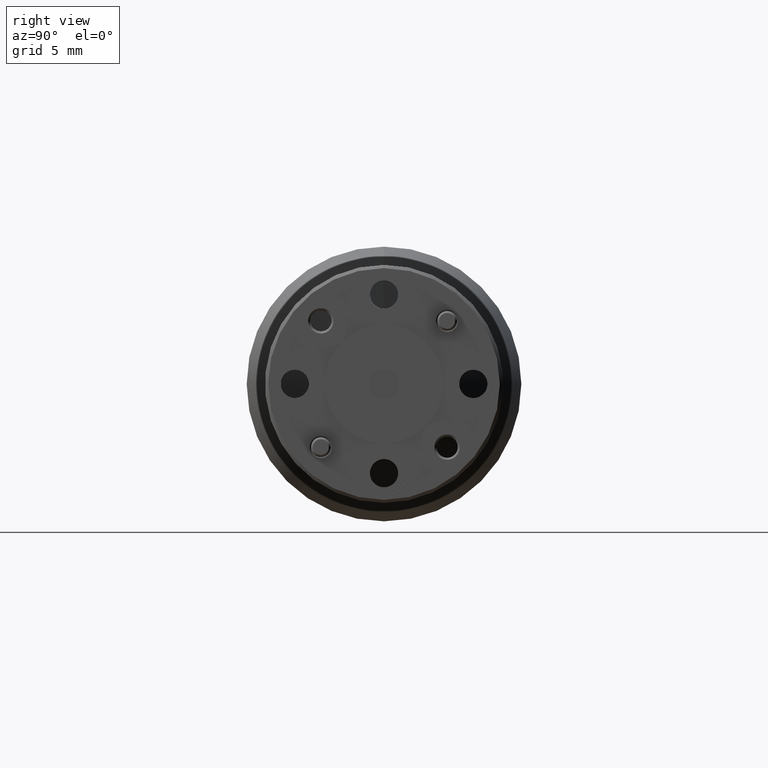
[diagram: clean part render]
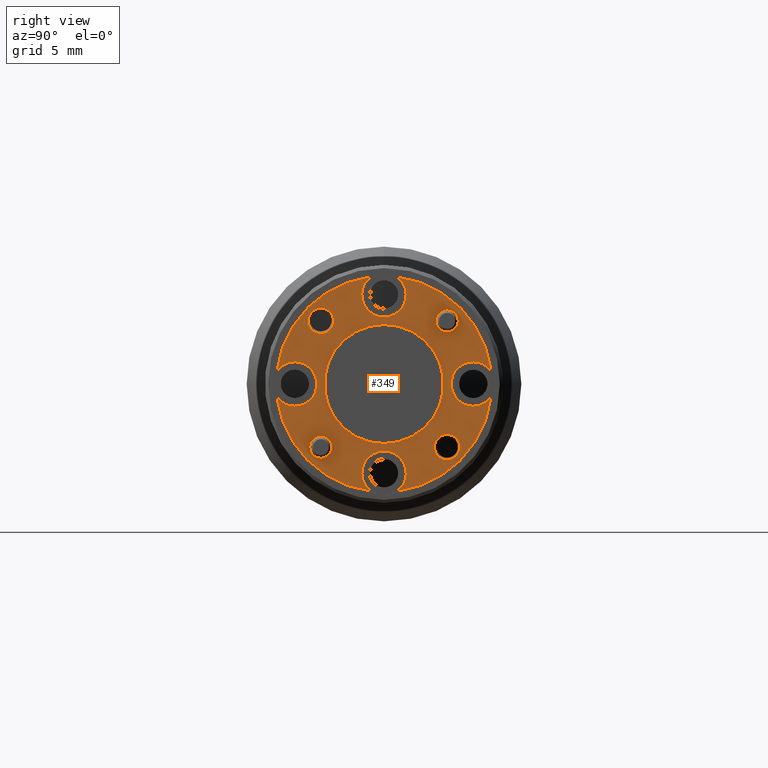
[diagram: same view with one face highlighted and labeled with its STEP entity id]
A machine part, right view. The second image highlights one B-rep face of the part: STEP entity #349.
In plain terms, the highlighted planar face has unit normal (1, 0, 0).
Its self-contained STEP definition (entity closure, byte-faithful):
#24 = CARTESIAN_POINT ( 'NONE',  ( -5.178961933510678683, 1.217303930725912142, 2.581463308989429883 ) ) ;
#31 = EDGE_CURVE ( 'NONE', #814, #1945, #253, .T. ) ;
#40 = ORIENTED_EDGE ( 'NONE', *, *, #589, .T. ) ;
#49 = ORIENTED_EDGE ( 'NONE', *, *, #234, .F. ) ;
#61 = VERTEX_POINT ( 'NONE', #2313 ) ;
#69 = DIRECTION ( 'NONE',  ( 1.000000000000000000, 0.000000000000000000, 0.000000000000000000 ) ) ;
#75 = ORIENTED_EDGE ( 'NONE', *, *, #1982, .F. ) ;
#98 = EDGE_CURVE ( 'NONE', #475, #1851, #1401, .T. ) ;
#129 = DIRECTION ( 'NONE',  ( 0.000000000000000000, 0.000000000000000000, -1.000000000000000000 ) ) ;
#159 = CARTESIAN_POINT ( 'NONE',  ( -5.178961933510678683, 1.217303930725912142, 2.370213308989429724 ) ) ;
#167 = DIRECTION ( 'NONE',  ( 1.000000000000000000, -0.000000000000000000, 6.123233995736766036E-17 ) ) ;
#177 = CIRCLE ( 'NONE', #1500, 0.07000000000000007605 ) ;
#183 = AXIS2_PLACEMENT_3D ( 'NONE', #2336, #677, #900 ) ;
#198 = CARTESIAN_POINT ( 'NONE',  ( -5.178961933510678683, 1.416177712934628463, 2.131339526780712923 ) ) ;
#208 = CIRCLE ( 'NONE', #1740, 0.07000000000000007605 ) ;
#217 = CARTESIAN_POINT ( 'NONE',  ( -5.178961933510678683, 1.554728930725912228, 2.411978957254480971 ) ) ;
#234 = EDGE_CURVE ( 'NONE', #1967, #1840, #639, .T. ) ;
#244 = CARTESIAN_POINT ( 'NONE',  ( -5.178961933510678683, 1.498553930725912364, 2.370213308989429724 ) ) ;
#252 = VERTEX_POINT ( 'NONE', #1164 ) ;
#253 = CIRCLE ( 'NONE', #884, 0.07000000000000007605 ) ;
#272 = AXIS2_PLACEMENT_3D ( 'NONE', #2331, #2203, #1096 ) ;
#300 = ORIENTED_EDGE ( 'NONE', *, *, #1940, .T. ) ;
#332 = DIRECTION ( 'NONE',  ( 1.000000000000000000, 0.000000000000000000, 0.000000000000000000 ) ) ;
#333 = CIRCLE ( 'NONE', #953, 0.03500000000000003803 ) ;
#334 = DIRECTION ( 'NONE',  ( 0.000000000000000000, 0.000000000000000000, -1.000000000000000000 ) ) ;
#346 = FACE_BOUND ( 'NONE', #1925, .T. ) ;
#347 = EDGE_CURVE ( 'NONE', #697, #1555, #442, .T. ) ;
#349 = ADVANCED_FACE ( 'NONE', ( #514, #847, #346, #1606, #1976, #2286 ), #1435, .T. ) ;
#355 = ORIENTED_EDGE ( 'NONE', *, *, #1065, .T. ) ;
#360 = CARTESIAN_POINT ( 'NONE',  ( -5.178961933510678683, 1.018430148517196043, 2.609087091198146524 ) ) ;
#363 = CIRCLE ( 'NONE', #591, 0.3399999999999999134 ) ;
#369 = CIRCLE ( 'NONE', #797, 0.07000000000000007605 ) ;
#375 = DIRECTION ( 'NONE',  ( 1.000000000000000000, -0.000000000000000000, 6.123233995736766036E-17 ) ) ;
#377 = CARTESIAN_POINT ( 'NONE',  ( -5.178961933510678683, 1.498553930725912364, 2.370213308989429724 ) ) ;
#378 = EDGE_CURVE ( 'NONE', #252, #1840, #2084, .T. ) ;
#380 = EDGE_CURVE ( 'NONE', #252, #2099, #948, .T. ) ;
#398 = CARTESIAN_POINT ( 'NONE',  ( -5.178961933510678683, 1.416177712934629795, 2.569087091198145156 ) ) ;
#426 = DIRECTION ( 'NONE',  ( 1.000000000000000000, 0.000000000000000000, 0.000000000000000000 ) ) ;
#437 = CARTESIAN_POINT ( 'NONE',  ( -5.178961933510678683, 1.217303930725912142, 2.370213308989429724 ) ) ;
#442 = CIRCLE ( 'NONE', #1064, 0.03500000000000003803 ) ;
#452 = DIRECTION ( 'NONE',  ( 0.000000000000000000, 0.000000000000000000, -1.000000000000000000 ) ) ;
#460 = CIRCLE ( 'NONE', #1711, 0.03500000000000003803 ) ;
#468 = DIRECTION ( 'NONE',  ( 1.000000000000000000, -0.000000000000000000, 6.123233995736766036E-17 ) ) ;
#475 = VERTEX_POINT ( 'NONE', #198 ) ;
#480 = CARTESIAN_POINT ( 'NONE',  ( -5.178961933510678683, 1.217303930725912142, 2.370213308989429724 ) ) ;
#491 = EDGE_CURVE ( 'NONE', #1851, #475, #2162, .T. ) ;
#502 = EDGE_CURVE ( 'NONE', #1381, #1913, #920, .T. ) ;
#503 = CARTESIAN_POINT ( 'NONE',  ( -5.178961933510678683, 1.217303930725912142, 2.651463308989429724 ) ) ;
#514 = FACE_BOUND ( 'NONE', #1499, .T. ) ;
#557 = EDGE_CURVE ( 'NONE', #2099, #1159, #177, .T. ) ;
#568 = CIRCLE ( 'NONE', #1260, 0.04000000000000011879 ) ;
#589 = EDGE_CURVE ( 'NONE', #1996, #1003, #363, .T. ) ;
#591 = AXIS2_PLACEMENT_3D ( 'NONE', #437, #69, #647 ) ;
#611 = ORIENTED_EDGE ( 'NONE', *, *, #378, .T. ) ;
#627 = ORIENTED_EDGE ( 'NONE', *, *, #1644, .F. ) ;
#639 = CIRCLE ( 'NONE', #1699, 0.07000000000000007605 ) ;
#641 = CIRCLE ( 'NONE', #989, 0.1875000000000001110 ) ;
#645 = EDGE_LOOP ( 'NONE', ( #1995, #40, #1312, #1091, #355, #879, #627, #978, #300, #710, #2340, #611, #49, #75 ) ) ;
#647 = DIRECTION ( 'NONE',  ( 0.000000000000000000, 0.000000000000000000, -1.000000000000000000 ) ) ;
#649 = DIRECTION ( 'NONE',  ( 0.000000000000000000, 0.000000000000000000, -1.000000000000000000 ) ) ;
#653 = EDGE_CURVE ( 'NONE', #1216, #786, #208, .T. ) ;
#654 = AXIS2_PLACEMENT_3D ( 'NONE', #899, #1605, #649 ) ;
#667 = CIRCLE ( 'NONE', #1092, 0.3399999999999999134 ) ;
#677 = DIRECTION ( 'NONE',  ( 1.000000000000000000, 0.000000000000000000, 0.000000000000000000 ) ) ;
#686 = ORIENTED_EDGE ( 'NONE', *, *, #1025, .F. ) ;
#697 = VERTEX_POINT ( 'NONE', #1973 ) ;
#705 = CARTESIAN_POINT ( 'NONE',  ( -5.178961933510678683, 1.217303930725912142, 2.651463308989429724 ) ) ;
#710 = ORIENTED_EDGE ( 'NONE', *, *, #557, .F. ) ;
#712 = CARTESIAN_POINT ( 'NONE',  ( -5.178961933510678683, 0.9360539307259121422, 2.370213308989429724 ) ) ;
#726 = AXIS2_PLACEMENT_3D ( 'NONE', #2038, #375, #1088 ) ;
#729 = CARTESIAN_POINT ( 'NONE',  ( -5.178961933510678683, 1.416177712934628463, 2.171339526780712958 ) ) ;
#730 = CIRCLE ( 'NONE', #2272, 0.07000000000000007605 ) ;
#732 = CARTESIAN_POINT ( 'NONE',  ( -5.178961933510678683, 1.416177712934628463, 2.171339526780712958 ) ) ;
#751 = EDGE_CURVE ( 'NONE', #1224, #1223, #1442, .T. ) ;
#766 = CIRCLE ( 'NONE', #1865, 0.07000000000000007605 ) ;
#774 = ORIENTED_EDGE ( 'NONE', *, *, #98, .F. ) ;
#784 = DIRECTION ( 'NONE',  ( 1.000000000000000000, 0.000000000000000000, 0.000000000000000000 ) ) ;
#786 = VERTEX_POINT ( 'NONE', #2284 ) ;
#797 = AXIS2_PLACEMENT_3D ( 'NONE', #377, #1837, #2212 ) ;
#804 = CARTESIAN_POINT ( 'NONE',  ( -5.178961933510678683, 1.416177712934629795, 2.604087091198145298 ) ) ;
#814 = VERTEX_POINT ( 'NONE', #1616 ) ;
#821 = DIRECTION ( 'NONE',  ( 1.000000000000000000, -0.000000000000000000, 6.123233995736766036E-17 ) ) ;
#824 = ORIENTED_EDGE ( 'NONE', *, *, #751, .F. ) ;
#847 = FACE_BOUND ( 'NONE', #993, .T. ) ;
#873 = CARTESIAN_POINT ( 'NONE',  ( -5.178961933510678683, 0.8798789307259121673, 2.328447660724378476 ) ) ;
#879 = ORIENTED_EDGE ( 'NONE', *, *, #653, .F. ) ;
#884 = AXIS2_PLACEMENT_3D ( 'NONE', #705, #1428, #1585 ) ;
#889 = EDGE_LOOP ( 'NONE', ( #927, #686 ) ) ;
#895 = EDGE_CURVE ( 'NONE', #2097, #1503, #460, .T. ) ;
#897 = DIRECTION ( 'NONE',  ( 1.000000000000000000, 0.000000000000000000, 0.000000000000000000 ) ) ;
#899 = CARTESIAN_POINT ( 'NONE',  ( -5.178961933510678683, 1.217303930725912142, 2.370213308989429724 ) ) ;
#900 = DIRECTION ( 'NONE',  ( 0.000000000000000000, 0.000000000000000000, -1.000000000000000000 ) ) ;
#920 = CIRCLE ( 'NONE', #726, 0.04000000000000011879 ) ;
#925 = DIRECTION ( 'NONE',  ( 0.000000000000000000, 0.000000000000000000, -1.000000000000000000 ) ) ;
#927 = ORIENTED_EDGE ( 'NONE', *, *, #347, .F. ) ;
#929 = DIRECTION ( 'NONE',  ( 0.000000000000000000, 0.000000000000000000, -1.000000000000000000 ) ) ;
#933 = DIRECTION ( 'NONE',  ( 1.000000000000000000, -0.000000000000000000, 6.123233995736766036E-17 ) ) ;
#941 = DIRECTION ( 'NONE',  ( 1.000000000000000000, -0.000000000000000000, 6.123233995736766036E-17 ) ) ;
#948 = CIRCLE ( 'NONE', #183, 0.07000000000000007605 ) ;
#953 = AXIS2_PLACEMENT_3D ( 'NONE', #1480, #167, #2198 ) ;
#978 = ORIENTED_EDGE ( 'NONE', *, *, #1580, .F. ) ;
#989 = AXIS2_PLACEMENT_3D ( 'NONE', #1210, #2334, #129 ) ;
#993 = EDGE_LOOP ( 'NONE', ( #2255, #1015 ) ) ;
#1001 = CIRCLE ( 'NONE', #654, 0.3399999999999999134 ) ;
#1003 = VERTEX_POINT ( 'NONE', #1767 ) ;
#1004 = EDGE_CURVE ( 'NONE', #1945, #1003, #766, .T. ) ;
#1015 = ORIENTED_EDGE ( 'NONE', *, *, #1100, .F. ) ;
#1025 = EDGE_CURVE ( 'NONE', #1555, #697, #1634, .T. ) ;
#1038 = DIRECTION ( 'NONE',  ( 0.000000000000000000, 0.000000000000000000, -1.000000000000000000 ) ) ;
#1047 = AXIS2_PLACEMENT_3D ( 'NONE', #712, #784, #1446 ) ;
#1049 = DIRECTION ( 'NONE',  ( 1.000000000000000000, 0.000000000000000000, 0.000000000000000000 ) ) ;
#1058 = DIRECTION ( 'NONE',  ( 0.000000000000000000, 0.000000000000000000, -1.000000000000000000 ) ) ;
#1064 = AXIS2_PLACEMENT_3D ( 'NONE', #2151, #2119, #334 ) ;
#1065 = EDGE_CURVE ( 'NONE', #814, #786, #1001, .T. ) ;
#1087 = CARTESIAN_POINT ( 'NONE',  ( -5.178961933510678683, 1.175538282460860895, 2.032788308989429638 ) ) ;
#1088 = DIRECTION ( 'NONE',  ( 0.000000000000000000, 0.000000000000000000, -1.000000000000000000 ) ) ;
#1091 = ORIENTED_EDGE ( 'NONE', *, *, #31, .F. ) ;
#1092 = AXIS2_PLACEMENT_3D ( 'NONE', #2173, #2039, #925 ) ;
#1096 = DIRECTION ( 'NONE',  ( 0.000000000000000000, 0.000000000000000000, -1.000000000000000000 ) ) ;
#1100 = EDGE_CURVE ( 'NONE', #1913, #1381, #568, .T. ) ;
#1104 = AXIS2_PLACEMENT_3D ( 'NONE', #1777, #897, #1603 ) ;
#1124 = CARTESIAN_POINT ( 'NONE',  ( -5.178961933510678683, 1.217303930725912142, 2.182713308989429724 ) ) ;
#1137 = CARTESIAN_POINT ( 'NONE',  ( -5.178961933510678683, 1.498553930725912364, 2.300213308989429883 ) ) ;
#1159 = VERTEX_POINT ( 'NONE', #1087 ) ;
#1164 = CARTESIAN_POINT ( 'NONE',  ( -5.178961933510678683, 1.259069578990963612, 2.032788308989429638 ) ) ;
#1171 = CARTESIAN_POINT ( 'NONE',  ( -5.178961933510678683, 1.018430148517196043, 2.529087091198146009 ) ) ;
#1210 = CARTESIAN_POINT ( 'NONE',  ( -5.178961933510678683, 1.217303930725912142, 2.370213308989429724 ) ) ;
#1216 = VERTEX_POINT ( 'NONE', #1637 ) ;
#1223 = VERTEX_POINT ( 'NONE', #1816 ) ;
#1224 = VERTEX_POINT ( 'NONE', #1124 ) ;
#1242 = DIRECTION ( 'NONE',  ( 1.000000000000000000, -0.000000000000000000, 6.123233995736766036E-17 ) ) ;
#1256 = CARTESIAN_POINT ( 'NONE',  ( -5.178961933510678683, 1.416177712934628463, 2.211339526780712994 ) ) ;
#1260 = AXIS2_PLACEMENT_3D ( 'NONE', #1594, #468, #1038 ) ;
#1264 = CARTESIAN_POINT ( 'NONE',  ( -5.178961933510678683, 1.498553930725912364, 2.370213308989429724 ) ) ;
#1312 = ORIENTED_EDGE ( 'NONE', *, *, #1004, .F. ) ;
#1345 = CARTESIAN_POINT ( 'NONE',  ( -5.178961933510678683, 1.217303930725912142, 2.088963308989429724 ) ) ;
#1381 = VERTEX_POINT ( 'NONE', #1171 ) ;
#1401 = CIRCLE ( 'NONE', #1979, 0.04000000000000011879 ) ;
#1415 = ORIENTED_EDGE ( 'NONE', *, *, #491, .F. ) ;
#1421 = CIRCLE ( 'NONE', #272, 0.07000000000000007605 ) ;
#1428 = DIRECTION ( 'NONE',  ( 1.000000000000000000, 0.000000000000000000, 0.000000000000000000 ) ) ;
#1435 = PLANE ( 'NONE',  #2229 ) ;
#1441 = AXIS2_PLACEMENT_3D ( 'NONE', #729, #941, #2200 ) ;
#1442 = CIRCLE ( 'NONE', #1104, 0.1875000000000001110 ) ;
#1446 = DIRECTION ( 'NONE',  ( 0.000000000000000000, 0.000000000000000000, -1.000000000000000000 ) ) ;
#1480 = CARTESIAN_POINT ( 'NONE',  ( -5.178961933510678683, 1.416177712934629795, 2.569087091198145156 ) ) ;
#1499 = EDGE_LOOP ( 'NONE', ( #774, #1415 ) ) ;
#1500 = AXIS2_PLACEMENT_3D ( 'NONE', #1345, #1518, #452 ) ;
#1503 = VERTEX_POINT ( 'NONE', #1972 ) ;
#1518 = DIRECTION ( 'NONE',  ( 1.000000000000000000, 0.000000000000000000, 0.000000000000000000 ) ) ;
#1529 = EDGE_LOOP ( 'NONE', ( #824, #1693 ) ) ;
#1555 = VERTEX_POINT ( 'NONE', #1804 ) ;
#1558 = DIRECTION ( 'NONE',  ( 0.000000000000000000, 0.000000000000000000, -1.000000000000000000 ) ) ;
#1559 = DIRECTION ( 'NONE',  ( 0.000000000000000000, 0.000000000000000000, -1.000000000000000000 ) ) ;
#1580 = EDGE_CURVE ( 'NONE', #1746, #61, #1677, .T. ) ;
#1585 = DIRECTION ( 'NONE',  ( 0.000000000000000000, 0.000000000000000000, -1.000000000000000000 ) ) ;
#1594 = CARTESIAN_POINT ( 'NONE',  ( -5.178961933510678683, 1.018430148517196043, 2.569087091198146489 ) ) ;
#1603 = DIRECTION ( 'NONE',  ( 0.000000000000000000, 0.000000000000000000, -1.000000000000000000 ) ) ;
#1605 = DIRECTION ( 'NONE',  ( 1.000000000000000000, 0.000000000000000000, 0.000000000000000000 ) ) ;
#1606 = FACE_BOUND ( 'NONE', #889, .T. ) ;
#1616 = CARTESIAN_POINT ( 'NONE',  ( -5.178961933510678683, 1.175538282460861117, 2.707638308989429810 ) ) ;
#1621 = CARTESIAN_POINT ( 'NONE',  ( -5.178961933510678683, 1.554728930725912228, 2.328447660724378476 ) ) ;
#1634 = CIRCLE ( 'NONE', #2282, 0.03500000000000003803 ) ;
#1637 = CARTESIAN_POINT ( 'NONE',  ( -5.178961933510678683, 0.9360539307259121422, 2.440213308989430008 ) ) ;
#1644 = EDGE_CURVE ( 'NONE', #61, #1216, #1421, .T. ) ;
#1677 = CIRCLE ( 'NONE', #1047, 0.07000000000000007605 ) ;
#1693 = ORIENTED_EDGE ( 'NONE', *, *, #2150, .F. ) ;
#1699 = AXIS2_PLACEMENT_3D ( 'NONE', #244, #2094, #2065 ) ;
#1711 = AXIS2_PLACEMENT_3D ( 'NONE', #398, #821, #2040 ) ;
#1740 = AXIS2_PLACEMENT_3D ( 'NONE', #1908, #426, #1883 ) ;
#1746 = VERTEX_POINT ( 'NONE', #873 ) ;
#1767 = CARTESIAN_POINT ( 'NONE',  ( -5.178961933510678683, 1.259069578990963612, 2.707638308989429810 ) ) ;
#1777 = CARTESIAN_POINT ( 'NONE',  ( -5.178961933510678683, 1.217303930725912142, 2.370213308989429724 ) ) ;
#1781 = AXIS2_PLACEMENT_3D ( 'NONE', #159, #1950, #1559 ) ;
#1804 = CARTESIAN_POINT ( 'NONE',  ( -5.178961933510678683, 1.018430148517194711, 2.206339526780714433 ) ) ;
#1816 = CARTESIAN_POINT ( 'NONE',  ( -5.178961933510678683, 1.217303930725912142, 2.557713308989429724 ) ) ;
#1837 = DIRECTION ( 'NONE',  ( 1.000000000000000000, 0.000000000000000000, 0.000000000000000000 ) ) ;
#1840 = VERTEX_POINT ( 'NONE', #1621 ) ;
#1851 = VERTEX_POINT ( 'NONE', #1256 ) ;
#1865 = AXIS2_PLACEMENT_3D ( 'NONE', #503, #332, #1558 ) ;
#1883 = DIRECTION ( 'NONE',  ( 0.000000000000000000, 0.000000000000000000, -1.000000000000000000 ) ) ;
#1908 = CARTESIAN_POINT ( 'NONE',  ( -5.178961933510678683, 0.9360539307259121422, 2.370213308989429724 ) ) ;
#1913 = VERTEX_POINT ( 'NONE', #360 ) ;
#1925 = EDGE_LOOP ( 'NONE', ( #2098, #2057 ) ) ;
#1936 = CARTESIAN_POINT ( 'NONE',  ( -5.178961933510678683, 1.018430148517194711, 2.171339526780714291 ) ) ;
#1940 = EDGE_CURVE ( 'NONE', #1746, #1159, #667, .T. ) ;
#1945 = VERTEX_POINT ( 'NONE', #24 ) ;
#1950 = DIRECTION ( 'NONE',  ( 1.000000000000000000, 0.000000000000000000, 0.000000000000000000 ) ) ;
#1967 = VERTEX_POINT ( 'NONE', #1137 ) ;
#1972 = CARTESIAN_POINT ( 'NONE',  ( -5.178961933510678683, 1.416177712934629795, 2.534087091198145014 ) ) ;
#1973 = CARTESIAN_POINT ( 'NONE',  ( -5.178961933510678683, 1.018430148517194711, 2.136339526780714149 ) ) ;
#1976 = FACE_OUTER_BOUND ( 'NONE', #645, .T. ) ;
#1979 = AXIS2_PLACEMENT_3D ( 'NONE', #732, #933, #2202 ) ;
#1982 = EDGE_CURVE ( 'NONE', #2047, #1967, #369, .T. ) ;
#1995 = ORIENTED_EDGE ( 'NONE', *, *, #2349, .F. ) ;
#1996 = VERTEX_POINT ( 'NONE', #217 ) ;
#2000 = DIRECTION ( 'NONE',  ( 1.000000000000000000, 0.000000000000000000, 0.000000000000000000 ) ) ;
#2038 = CARTESIAN_POINT ( 'NONE',  ( -5.178961933510678683, 1.018430148517196043, 2.569087091198146489 ) ) ;
#2039 = DIRECTION ( 'NONE',  ( 1.000000000000000000, 0.000000000000000000, 0.000000000000000000 ) ) ;
#2040 = DIRECTION ( 'NONE',  ( 0.000000000000000000, 0.000000000000000000, -1.000000000000000000 ) ) ;
#2047 = VERTEX_POINT ( 'NONE', #2236 ) ;
#2057 = ORIENTED_EDGE ( 'NONE', *, *, #895, .F. ) ;
#2065 = DIRECTION ( 'NONE',  ( 0.000000000000000000, 0.000000000000000000, -1.000000000000000000 ) ) ;
#2084 = CIRCLE ( 'NONE', #1781, 0.3399999999999999134 ) ;
#2094 = DIRECTION ( 'NONE',  ( 1.000000000000000000, 0.000000000000000000, 0.000000000000000000 ) ) ;
#2097 = VERTEX_POINT ( 'NONE', #804 ) ;
#2098 = ORIENTED_EDGE ( 'NONE', *, *, #2213, .F. ) ;
#2099 = VERTEX_POINT ( 'NONE', #2222 ) ;
#2119 = DIRECTION ( 'NONE',  ( 1.000000000000000000, -0.000000000000000000, 6.123233995736766036E-17 ) ) ;
#2131 = DIRECTION ( 'NONE',  ( 0.000000000000000000, 0.000000000000000000, -1.000000000000000000 ) ) ;
#2150 = EDGE_CURVE ( 'NONE', #1223, #1224, #641, .T. ) ;
#2151 = CARTESIAN_POINT ( 'NONE',  ( -5.178961933510678683, 1.018430148517194711, 2.171339526780714291 ) ) ;
#2162 = CIRCLE ( 'NONE', #1441, 0.04000000000000011879 ) ;
#2173 = CARTESIAN_POINT ( 'NONE',  ( -5.178961933510678683, 1.217303930725912142, 2.370213308989429724 ) ) ;
#2198 = DIRECTION ( 'NONE',  ( 0.000000000000000000, 0.000000000000000000, -1.000000000000000000 ) ) ;
#2200 = DIRECTION ( 'NONE',  ( 0.000000000000000000, 0.000000000000000000, -1.000000000000000000 ) ) ;
#2202 = DIRECTION ( 'NONE',  ( 0.000000000000000000, 0.000000000000000000, -1.000000000000000000 ) ) ;
#2203 = DIRECTION ( 'NONE',  ( 1.000000000000000000, 0.000000000000000000, 0.000000000000000000 ) ) ;
#2212 = DIRECTION ( 'NONE',  ( 0.000000000000000000, 0.000000000000000000, -1.000000000000000000 ) ) ;
#2213 = EDGE_CURVE ( 'NONE', #1503, #2097, #333, .T. ) ;
#2222 = CARTESIAN_POINT ( 'NONE',  ( -5.178961933510678683, 1.217303930725912142, 2.158963308989429564 ) ) ;
#2229 = AXIS2_PLACEMENT_3D ( 'NONE', #480, #1049, #2131 ) ;
#2236 = CARTESIAN_POINT ( 'NONE',  ( -5.178961933510678683, 1.498553930725912364, 2.440213308989430008 ) ) ;
#2255 = ORIENTED_EDGE ( 'NONE', *, *, #502, .F. ) ;
#2272 = AXIS2_PLACEMENT_3D ( 'NONE', #1264, #2000, #929 ) ;
#2282 = AXIS2_PLACEMENT_3D ( 'NONE', #1936, #1242, #1058 ) ;
#2284 = CARTESIAN_POINT ( 'NONE',  ( -5.178961933510678683, 0.8798789307259121673, 2.411978957254480971 ) ) ;
#2286 = FACE_BOUND ( 'NONE', #1529, .T. ) ;
#2313 = CARTESIAN_POINT ( 'NONE',  ( -5.178961933510678683, 0.9360539307259121422, 2.300213308989429883 ) ) ;
#2331 = CARTESIAN_POINT ( 'NONE',  ( -5.178961933510678683, 0.9360539307259121422, 2.370213308989429724 ) ) ;
#2334 = DIRECTION ( 'NONE',  ( 1.000000000000000000, 0.000000000000000000, 0.000000000000000000 ) ) ;
#2336 = CARTESIAN_POINT ( 'NONE',  ( -5.178961933510678683, 1.217303930725912142, 2.088963308989429724 ) ) ;
#2340 = ORIENTED_EDGE ( 'NONE', *, *, #380, .F. ) ;
#2349 = EDGE_CURVE ( 'NONE', #1996, #2047, #730, .T. ) ;